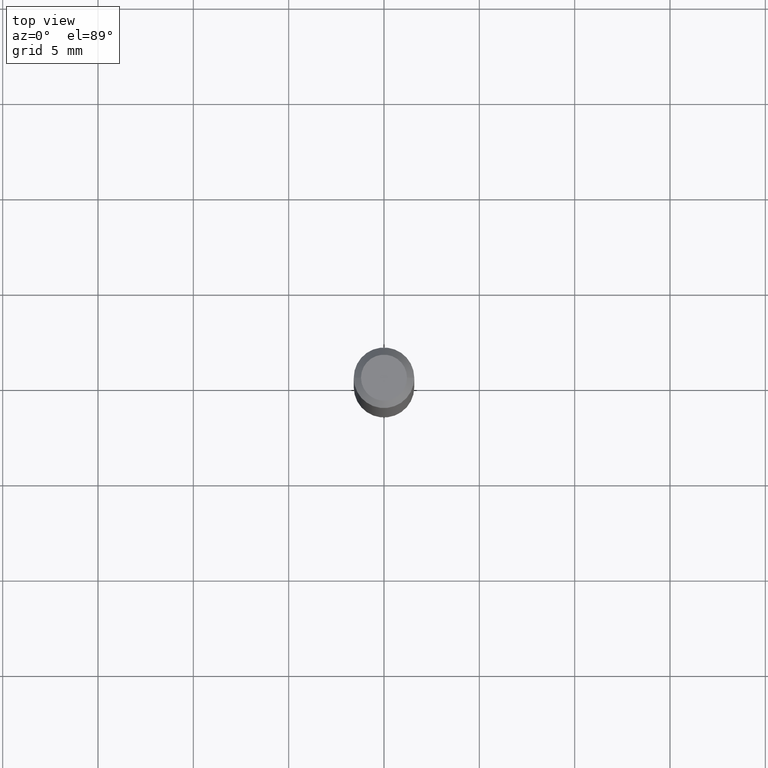
[diagram: clean part render]
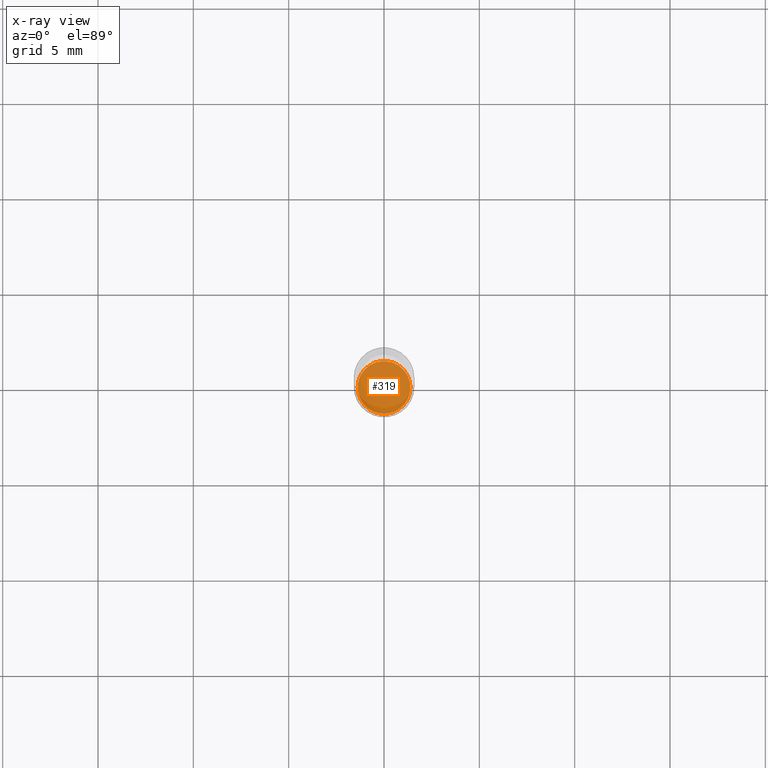
[diagram: x-ray — body ghosted, one internal face saturated and labeled with its STEP entity id]
A machine part, top view, then the same camera in x-ray: the body is ghosted and one INTERNAL B-rep face — a face not visible from any outside direction — is saturated and labeled: STEP entity #319.
In plain terms, the highlighted planar face has unit normal (-0, 0, 1).
Its self-contained STEP definition (entity closure, byte-faithful):
#46 = CARTESIAN_POINT ( 'NONE',  ( 2.861198503236610065E-29, -4.085033166446480067E-15, -1.170000000000000151 ) ) ;
#70 = CARTESIAN_POINT ( 'NONE',  ( -0.05450000000000009698, -3.695138148283113527E-15, -1.170000000000000151 ) ) ;
#82 = AXIS2_PLACEMENT_3D ( 'NONE', #254, #488, #459 ) ;
#93 = CARTESIAN_POINT ( 'NONE',  ( 0.05450000000000009698, -4.465604632380382834E-15, -1.170000000000000151 ) ) ;
#94 = FACE_OUTER_BOUND ( 'NONE', #394, .T. ) ;
#97 = VERTEX_POINT ( 'NONE', #93 ) ;
#133 = PLANE ( 'NONE',  #396 ) ;
#177 = EDGE_CURVE ( 'NONE', #97, #256, #460, .T. ) ;
#242 = CIRCLE ( 'NONE', #317, 0.05450000000000009698 ) ;
#246 = DIRECTION ( 'NONE',  ( 1.000000000000000000, -6.982962677686265922E-15, 4.876176775795935793E-29 ) ) ;
#254 = CARTESIAN_POINT ( 'NONE',  ( 2.861198503236610065E-29, -4.085033166446480067E-15, -1.170000000000000151 ) ) ;
#256 = VERTEX_POINT ( 'NONE', #70 ) ;
#300 = ORIENTED_EDGE ( 'NONE', *, *, #177, .F. ) ;
#309 = DIRECTION ( 'NONE',  ( -2.445468806185136597E-29, 3.491481338843145583E-15, 1.000000000000000000 ) ) ;
#317 = AXIS2_PLACEMENT_3D ( 'NONE', #371, #309, #480 ) ;
#319 = ADVANCED_FACE ( 'NONE', ( #94 ), #133, .F. ) ;
#371 = CARTESIAN_POINT ( 'NONE',  ( 2.861198503236610065E-29, -4.085033166446480067E-15, -1.170000000000000151 ) ) ;
#394 = EDGE_LOOP ( 'NONE', ( #300, #426 ) ) ;
#396 = AXIS2_PLACEMENT_3D ( 'NONE', #46, #517, #246 ) ;
#426 = ORIENTED_EDGE ( 'NONE', *, *, #514, .F. ) ;
#459 = DIRECTION ( 'NONE',  ( 1.000000000000000000, -6.982962677686276177E-15, 0.000000000000000000 ) ) ;
#460 = CIRCLE ( 'NONE', #82, 0.05450000000000009698 ) ;
#480 = DIRECTION ( 'NONE',  ( 1.000000000000000000, -6.982962677686276177E-15, 0.000000000000000000 ) ) ;
#488 = DIRECTION ( 'NONE',  ( -2.445468806185136597E-29, 3.491481338843145583E-15, 1.000000000000000000 ) ) ;
#514 = EDGE_CURVE ( 'NONE', #256, #97, #242, .T. ) ;
#517 = DIRECTION ( 'NONE',  ( -2.438088387897960049E-29, 3.491481338843145188E-15, 1.000000000000000000 ) ) ;